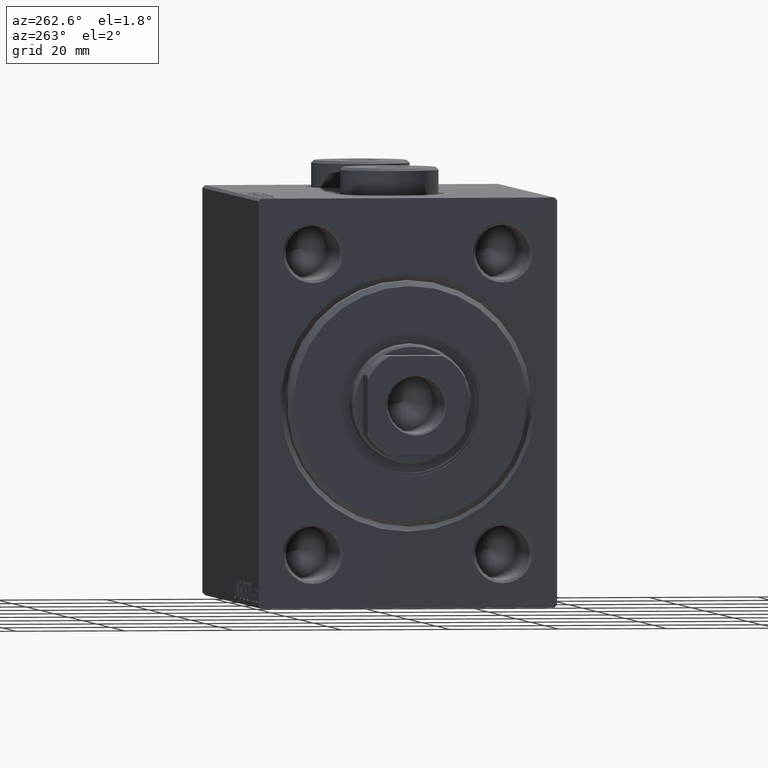
[diagram: clean part render]
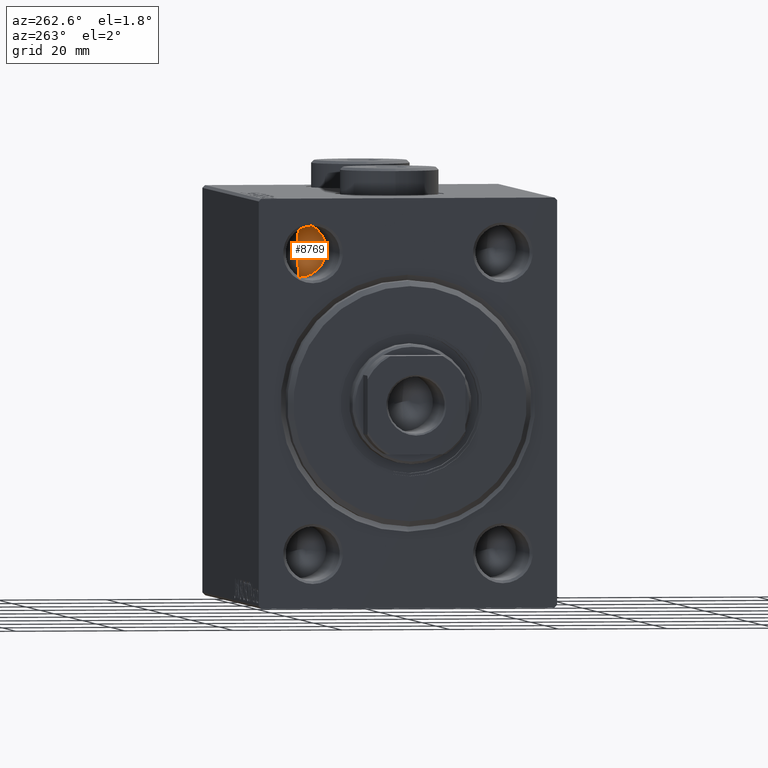
[diagram: same view with one face highlighted and labeled with its STEP entity id]
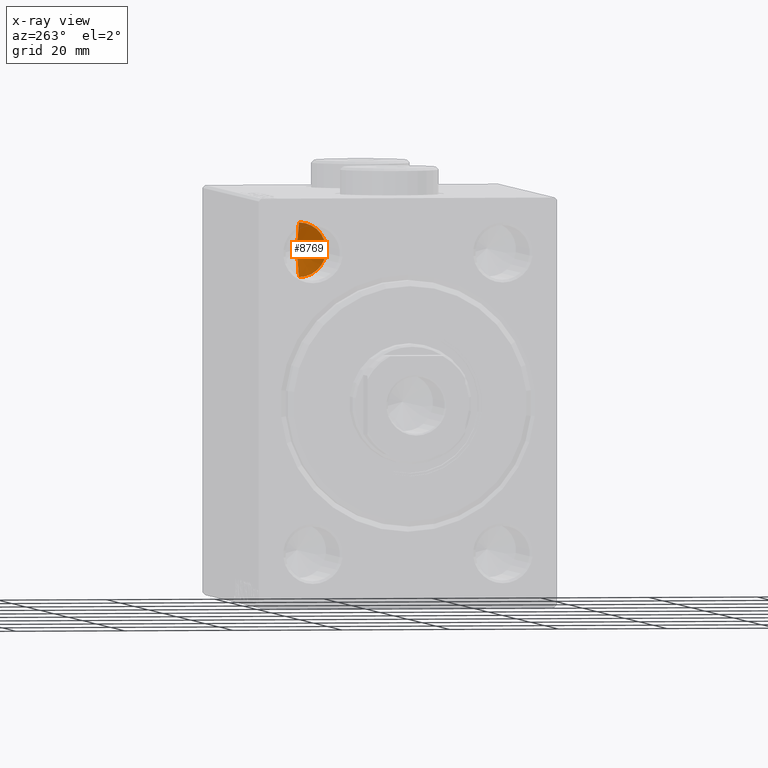
[diagram: x-ray of the same camera — body ghosted, the highlighted face saturated]
A machine part, auxiliary view. The second image highlights one B-rep face of the part: STEP entity #8769.
The next image is the same camera in x-ray: the body ghosted, the highlighted face saturated — about 4% of this face is hidden behind the body in this view.
In plain terms, the highlighted conical surface has half-angle 59 deg.
Its self-contained STEP definition (entity closure, byte-faithful):
#1362 = ORIENTED_EDGE ( 'NONE', *, *, #4175, .T. ) ;
#2819 = EDGE_CURVE ( 'NONE', #32094, #35882, #44139, .T. ) ;
#4175 = EDGE_CURVE ( 'NONE', #35882, #28203, #8458, .T. ) ;
#7553 = CARTESIAN_POINT ( 'NONE',  ( 20.00000000000000000, 17.50000000000000000, 27.50000000000000000 ) ) ;
#8458 = CIRCLE ( 'NONE', #34212, 5.000000000000000888 ) ;
#8769 = ADVANCED_FACE ( 'NONE', ( #23792 ), #26869, .F. ) ;
#9743 = CARTESIAN_POINT ( 'NONE',  ( 20.00000000000000000, 17.50000000000000000, 27.50000000000000000 ) ) ;
#10426 = DIRECTION ( 'NONE',  ( -1.000000000000000000, -0.000000000000000000, -0.000000000000000000 ) ) ;
#11174 = EDGE_LOOP ( 'NONE', ( #12249, #42793, #1362 ) ) ;
#11430 = AXIS2_PLACEMENT_3D ( 'NONE', #9743, #10426, #41088 ) ;
#12061 = CARTESIAN_POINT ( 'NONE',  ( 20.00000000000000000, 17.50000000000000000, 32.50000000000000000 ) ) ;
#12249 = ORIENTED_EDGE ( 'NONE', *, *, #27123, .F. ) ;
#12449 = DIRECTION ( 'NONE',  ( -0.5150380749100550437, 0.000000000000000000, 0.8571673007021117785 ) ) ;
#12565 = CARTESIAN_POINT ( 'NONE',  ( 20.00000000000000000, 17.50000000000000000, 22.50000000000000355 ) ) ;
#14084 = CARTESIAN_POINT ( 'NONE',  ( 20.00000000000000000, 17.50000000000000000, 22.50000000000000355 ) ) ;
#18796 = DIRECTION ( 'NONE',  ( -0.5150380749100550437, 1.049727191138617956E-16, -0.8571673007021117785 ) ) ;
#23792 = FACE_OUTER_BOUND ( 'NONE', #11174, .T. ) ;
#23887 = VECTOR ( 'NONE', #18796, 1000.000000000000000 ) ;
#23988 = DIRECTION ( 'NONE',  ( 0.000000000000000000, 0.000000000000000000, 1.000000000000000000 ) ) ;
#26869 = CONICAL_SURFACE ( 'NONE', #11430, 5.000000000000000888, 1.029744258676653423 ) ;
#27123 = EDGE_CURVE ( 'NONE', #32094, #28203, #44698, .T. ) ;
#27197 = CARTESIAN_POINT ( 'NONE',  ( 20.00000000000000000, 17.50000000000000000, 32.50000000000000000 ) ) ;
#28203 = VERTEX_POINT ( 'NONE', #12061 ) ;
#32094 = VERTEX_POINT ( 'NONE', #41611 ) ;
#34212 = AXIS2_PLACEMENT_3D ( 'NONE', #7553, #41509, #23988 ) ;
#35882 = VERTEX_POINT ( 'NONE', #14084 ) ;
#41088 = DIRECTION ( 'NONE',  ( 0.000000000000000000, 0.000000000000000000, 1.000000000000000000 ) ) ;
#41509 = DIRECTION ( 'NONE',  ( -1.000000000000000000, -0.000000000000000000, -0.000000000000000000 ) ) ;
#41611 = CARTESIAN_POINT ( 'NONE',  ( 23.00430309513780358, 17.49999999999999645, 27.50000000000000000 ) ) ;
#42721 = VECTOR ( 'NONE', #12449, 1000.000000000000000 ) ;
#42793 = ORIENTED_EDGE ( 'NONE', *, *, #2819, .T. ) ;
#44139 = LINE ( 'NONE', #12565, #23887 ) ;
#44698 = LINE ( 'NONE', #27197, #42721 ) ;